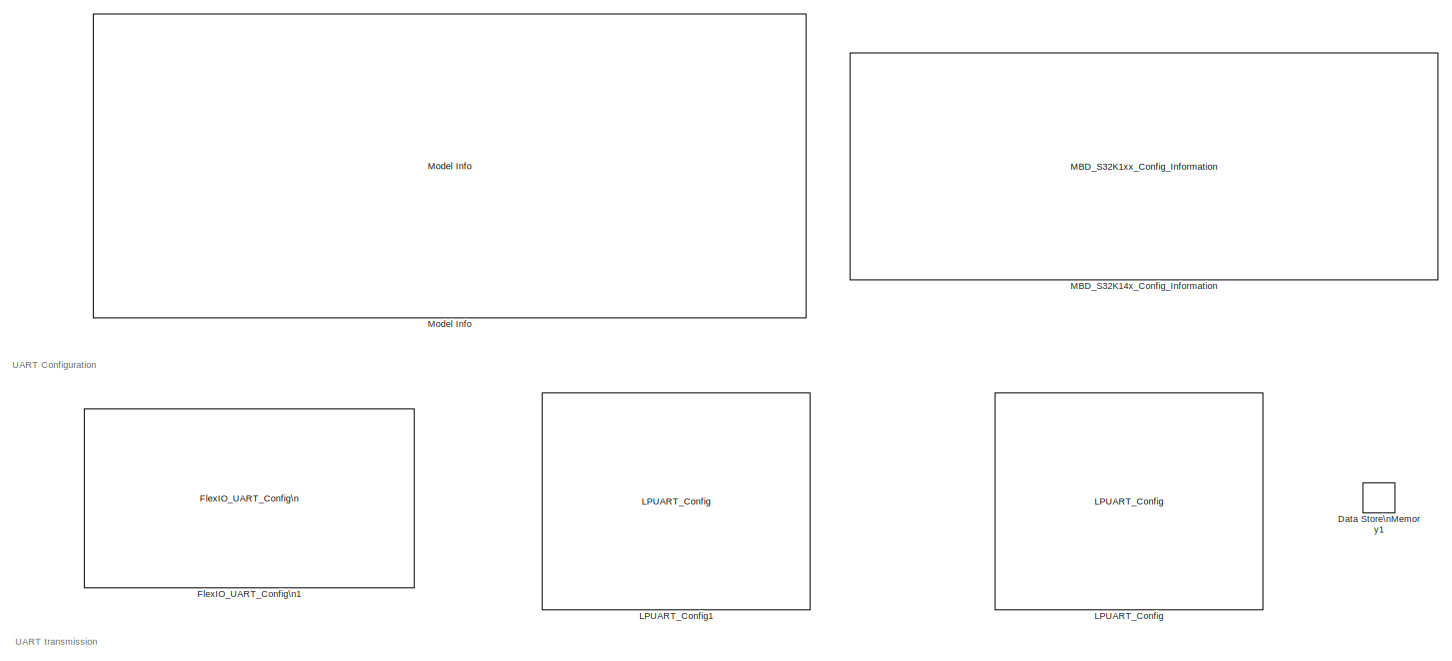
[diagram: root canvas - part 1/2, full width, top band]
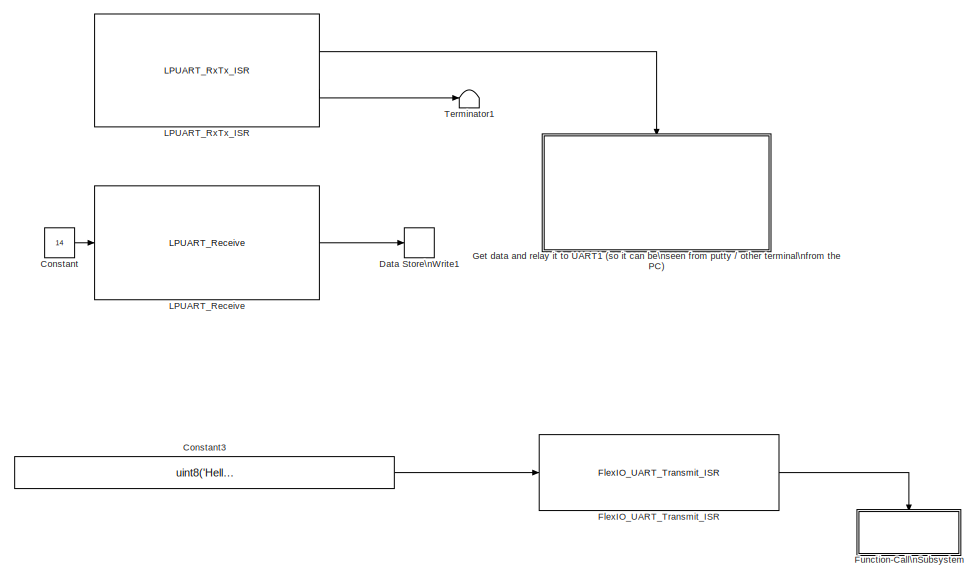
[diagram: root canvas - part 2/2, bottom center region]
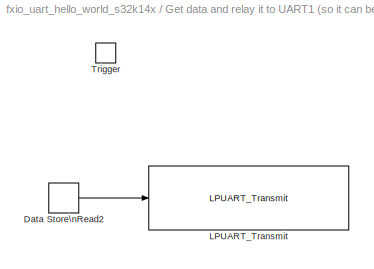
MODEL fxio_uart_hello_world_s32k14x
KIND model
CONFIG InitFcn = mbd_s32k_consistency_checks(bdroot(gcs));
BLOCK [Constant] Constant
  OutDataTypeStr = uint32
  SID = 195
  Value = 14
BLOCK [Constant] Constant3
  OutDataTypeStr = uint8
  SID = 201
  SampleTime = -1
  Value = uint8('Hello World!!!')
BLOCK [DataStoreMemory] Data Store\nMemory1
  DataStoreName = data
  Dimensions = 14
  ReadBeforeWriteMsg = warning
  SID = 202
  ShowAdditionalParam = off
  WriteAfterReadMsg = warning
  WriteAfterWriteMsg = warning
BLOCK [DataStoreWrite] Data Store\nWrite1
  DataStoreName = data
  Ports = [1]
  SID = 203
BLOCK [Reference] FlexIO_UART_Config\n1  REF=mbd_s32k1xx_ec_toolbox/Communication Blocks/FlexIO Blocks\n/FlexIO UART Blocks/FlexIO_UART_Config\n
  BaudRate = 115200
  BitCount = 8
  DriverType = Interrupts
  InstanceNumber = 0
  Ports = []
  Priority = 3
  RxPin = PTD1: [FXIO_D1 | FlexIO Bi-directional Shift/timer I/O]
  SID = 105
  SourceBlock = mbd_s32k1xx_ec_toolbox/Communication Blocks/FlexIO Blocks\n/FlexIO UART Blocks/FlexIO_UART_Config\n
  SourceType = flexio_uart_s32k_config
  TxPin = PTD0: [FXIO_D0 | FlexIO Bi-directional Shift/timer I/O]
BLOCK [Reference] FlexIO_UART_Transmit_ISR  REF=mbd_s32k1xx_ec_toolbox/Communication Blocks/FlexIO Blocks\n/FlexIO UART Blocks/FlexIO_UART_Transmit_ISR
  InstanceNumber = 0
  Ports = [1, 1]
  SID = 196
  SourceBlock = mbd_s32k1xx_ec_toolbox/Communication Blocks/FlexIO Blocks\n/FlexIO UART Blocks/FlexIO_UART_Transmit_ISR
  SourceType = flexio_uart_s32k_transmit_isr
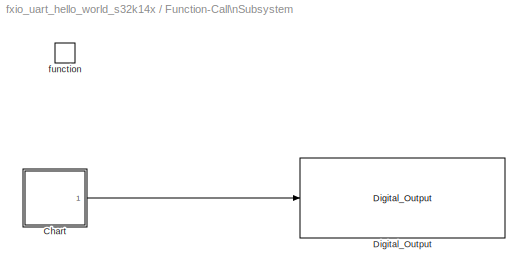
BLOCK [SubSystem] Function-Call\nSubsystem
  Ports = [0, 0, 0, 1]
  RequestExecContextInheritance = off
  SID = 197
  TreatAsAtomicUnit = on
  Variant = off
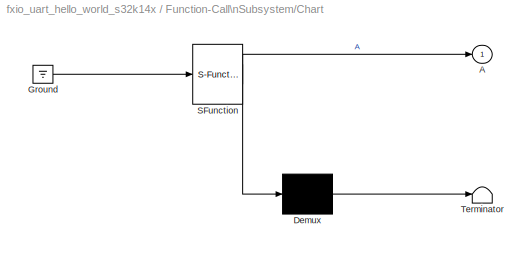
BLOCK [SubSystem] Function-Call\nSubsystem/Chart
  ErrorFcn = Stateflow.Translate.translate
  PermitHierarchicalResolution = ExplicitOnly
  Ports = [0, 1]
  RequestExecContextInheritance = off
  SFBlockType = Chart
  SID = 199
  TreatAsAtomicUnit = on
  Variant = off
BLOCK [Outport] Function-Call\nSubsystem/Chart/ A
  IconDisplay = Port number
  SID = 199::6
BLOCK [Demux] Function-Call\nSubsystem/Chart/ Demux 
  Outputs = 1
  Ports = [1, 1]
  SID = 199::36
BLOCK [Ground] Function-Call\nSubsystem/Chart/ Ground 
  SID = 199::38
BLOCK [S-Function] Function-Call\nSubsystem/Chart/ SFunction 
  EnableBusSupport = off
  FunctionName = sf_sfun
  PortCounts = [1 2]
  Ports = [1, 2]
  SFcnIsStateOwnerBlock = off
  SFunctionDeploymentMode = off
  SID = 199::35
  Tag = Stateflow S-Function fxio_uart_hello_world_s32k14x 2
BLOCK [Terminator] Function-Call\nSubsystem/Chart/ Terminator 
  SID = 199::37
BLOCK [Reference] Function-Call\nSubsystem/Digital_Output  REF=mbd_s32k1xx_ec_toolbox/GPIO Blocks/Digital_Output
  Ports = [1]
  SID = 200
  SourceBlock = mbd_s32k1xx_ec_toolbox/GPIO Blocks/Digital_Output
  SourceType = gpio_s32k_output
  drive_strength = Low
  gpio_pin = PTD16: [PTD16 | Port D I/O]
  init_val = Low
BLOCK [TriggerPort] Function-Call\nSubsystem/function
  Ports = []
  SID = 198
  StatesWhenEnabling = held
  TriggerType = function-call
  VariantControl = Variant
BLOCK [SubSystem] Get data and relay it to UART1 (so it can be\nseen from putty // other terminal\nfrom the PC)
  Ports = [0, 0, 0, 1]
  RequestExecContextInheritance = off
  SID = 122
  Variant = off
BLOCK [DataStoreRead] Get data and relay it to UART1 (so it can be\nseen from putty // other terminal\nfrom the PC)/Data Store\nRead2
  DataStoreName = data
  Ports = [0, 1]
  SID = 204
BLOCK [Reference] Get data and relay it to UART1 (so it can be\nseen from putty // other terminal\nfrom the PC)/LPUART_Transmit  REF=mbd_s32k1xx_ec_toolbox/Communication Blocks/UART Blocks/LPUART_Transmit
  Ports = [1]
  Priority = 2
  SID = 125
  SourceBlock = mbd_s32k1xx_ec_toolbox/Communication Blocks/UART Blocks/LPUART_Transmit
  SourceType = lpuart_s32k_transmit
  instance = 1
BLOCK [TriggerPort] Get data and relay it to UART1 (so it can be\nseen from putty // other terminal\nfrom the PC)/Trigger
  PortDimensions = 1
  Ports = []
  SID = 124
  StatesWhenEnabling = held
  TriggerType = function-call
  VariantControl = Variant
BLOCK [Reference] LPUART_Config  REF=mbd_s32k1xx_ec_toolbox/Communication Blocks/UART Blocks/LPUART_Config
  Ports = []
  Priority = 2
  SID = 126
  SourceBlock = mbd_s32k1xx_ec_toolbox/Communication Blocks/UART Blocks/LPUART_Config
  SourceType = lpuart_s32k_config
  baudrate = 115200
  bothedge = rising edge
  brk13 = 10 - 13 bit times
  cts = PTC12: [LPUART2_CTS | Clear To Send (bar)]
  databits = 8
  instance = 2
  lbkde = 10 - 13 bit times
  parity = None
  rts = PTC13: [LPUART2_RTS | Request To Send]
  rx = PTD6: [LPUART2_RX | Receive]
  rxinv = off
  sbns = 1
  show_adv_opts = on
  tx = PTD7: [LPUART2_TX | Transmit]
  txinv = off
BLOCK [Reference] LPUART_Config1  REF=mbd_s32k1xx_ec_toolbox/Communication Blocks/UART Blocks/LPUART_Config
  Ports = []
  Priority = 2
  SID = 127
  SourceBlock = mbd_s32k1xx_ec_toolbox/Communication Blocks/UART Blocks/LPUART_Config
  SourceType = lpuart_s32k_config
  baudrate = 115200
  bothedge = rising edge
  brk13 = 10 - 13 bit times
  cts = PTA6: [LPUART1_CTS | Clear To Send (bar)]
  databits = 8
  instance = 1
  lbkde = 10 - 13 bit times
  parity = None
  rts = PTA7: [LPUART1_RTS | Request To Send]
  rx = PTC6: [LPUART1_RX | Receive]
  rxinv = off
  sbns = 1
  show_adv_opts = off
  tx = PTC7: [LPUART1_TX | Transmit]
  txinv = off
BLOCK [Reference] LPUART_Receive  REF=mbd_s32k1xx_ec_toolbox/Communication Blocks/UART Blocks/LPUART_Receive
  Ports = [1, 1]
  SID = 128
  SourceBlock = mbd_s32k1xx_ec_toolbox/Communication Blocks/UART Blocks/LPUART_Receive
  SourceType = lpuart_s32k_receive
  instance = 2
BLOCK [Reference] LPUART_RxTx_ISR  REF=mbd_s32k1xx_ec_toolbox/Communication Blocks/UART Blocks/LPUART_RxTx_ISR
  Ports = [0, 2]
  Priority = 4
  SID = 129
  SourceBlock = mbd_s32k1xx_ec_toolbox/Communication Blocks/UART Blocks/LPUART_RxTx_ISR
  SourceType = lpuart_s32k_rxtx_isr
  ilie = off
  instance = 2
  prio = 14
  rie = on
  tcie = off
  tie = off
BLOCK [Reference] MBD_S32K14x_Config_Information  REF=mbd_s32k1xx_ec_toolbox/MBD_S32K1xx_Config_Information
  ADC_PcrCheckEnDis = on
  AMMCLIB_PcrCheckEnDis = on
  CMP_PcrCheckEnDis = on
  CSEc_PcrCheckEnDis = on
  ConfigParams_PcrCheckEnDis = on
  FM_PcrCheckEnDis = on
  FTM_Dual_Edge_Inputs_PcrCheckEnDis = on
  FTM_Hall_Sensor_Inputs_PcrCheckEnDis = on
  FTM_Input_Edge_Inputs_PcrCheckEnDis = on
  FTM_PWM_PcrCheckEnDis = on
  FTM_Quadrature_Inputs_PcrCheckEnDis = on
  FlexCAN_PcrCheckEnDis = on
  FlexIO_PcrCheckEnDis = on
  GPIO_InputPcrCheckEnDis = on
  GPIO_OutputPcrCheckEnDis = on
  LIN_PcrCheckEnDis = on
  LPI2C_PcrCheckEnDis = on
  LPSPI_PcrCheckEnDis = on
  LPTMR_PcrCheckEnDis = on
  LPUART_PcrCheckEnDis = on
  ModelRef_PcrCheckEnDis = on
  PDB0_PcrCheckEnDis = on
  PIT_PcrCheckEnDis = on
  Ports = []
  Profile_PcrCheckEnDis = on
  RTC_PcrCheckEnDis = on
  SBC_PcrCheckEnDis = on
  SID = 2
  SourceBlock = mbd_s32k1xx_ec_toolbox/MBD_S32K1xx_Config_Information
  SourceType = MBDTBX_EC_S32K
  WDOG_PcrCheckEnDis = on
  config_params = []
  disp_str = Target : S32K144-64KB_SRAM\nPackage : 100-pin\nSystem clock : 80 MHz\nXTAL clock : External 8 MHz\nCompiler : IAR\nTarget Type : FLASH\nDownload Code after build : off\nStep Tick Interrupt Priority : 15
  ds_import_enable = on
  eDMA_PcrCheckEnDis = on
  gcc_target_assemble_opts = -mcpu=cortex-m4 -mthumb -mfloat-abi=hard -mfpu=fpv4-sp-d16 -g
  gcc_target_compile_opts = -mcpu=cortex-m4 -mthumb -mfloat-abi=hard -mfpu=fpv4-sp-d16 -O1 -g -gstrict-dwarf
  gcc_target_default_lcf = on
  gcc_target_link_opts = -mcpu=cortex-m4 -mthumb -mfloat-abi=hard -mfpu=fpv4-sp-d16
  gcc_target_user_lcf = S32K144_48_flash.ld
  ghs_target_assemble_opts = -cpu=cortexm4f -fpu=vfpv4_d16
  ghs_target_compile_opts = -cpu=cortexm4f -thumb -DARM_MATH_CM4 -fpu=vfpv4_d16 -fsingle -Ogeneral -Wundef -Wimplicit-int -Wshadow -Wtrigraphs --no_commons --gnu_asm -gnu99 -gdwarf-2 -G
  ghs_target_default_lcf = off
  ghs_target_link_opts = -cpu=cortexm4f -thumb -fpu=vfpv4_d16
  ghs_target_user_lcf = S32K144_48_flash.ld
  iar_target_assemble_opts = --cpu Cortex-M4F --thumb --fpu VFPv4_sp
  iar_target_compile_opts = --cpu=Cortex-M4F --thumb --fpu=VFPv4_sp -Ol -e --debug --dlib_config normal
  iar_target_default_lcf = off
  iar_target_link_opts = --no_exceptions --vfe --inline
  iar_target_user_lcf = S32K144_48_flash.icf
  mbdt_ver = 0
  mcu_steptick_prio = 15
  mcu_steptick_timer = LPIT Channel 0
  mcu_system_clock_freq = 80
  mcu_target_name = S32K144
  mcu_target_package = 100-LQFP
  mcu_target_sram_size = 48KB
  mcu_xtal_freq = External 8
  pil_download_enable = off
  pil_download_rate = 57600
  pil_opensda_drive = Custom
  pil_opensda_drive_custom = D
  pil_uart_instance = 0
  pil_uart_rx = PTA2: [LPUART0_RX | Receive]
  pil_uart_tx = PTA3: [LPUART0_TX | Transmit]
  rbl_com_port = Custom
  rbl_com_port_custom = COM1
  rbl_download_enable = on
  rbl_download_interface = OpenSDA
  rbl_restart_request = off
  rbl_start_delay = 5000000
  target_compiler = GCC
  target_memory = FLASH
BLOCK [Reference] Model Info  REF=simulink/Model-Wide\nUtilities/Model Info
  DisplayStringWithTags = Model Name: %<ModelName>\n\nDescription: %<Description>
  Frame = off
  HorizontalTextAlignment = Left
  LeftAlignmentValue = 0.02
  MaskDisplayString = Model Name: fxio_uart_hello_world_s32k14x\\n\\nDescription: In this example you send the data to UART2 instance from the FlexIO module and then the message is relayed to UART1 so you can visualize\\nit via a serial terminal (eg. Putty).\\n\\nHW prerequisite:\\n- S32K144 EVB\\n- Connect:\\n    PTD0 (FXIO_UART_Tx from the board) - PTD6 (Rx UART2 from the board)\\n\\nVerification:\\n\\nOpen a termina...<+498ch>
  Ports = []
  SID = 194
  SourceBlock = simulink/Model-Wide\nUtilities/Model Info
  SourceProductBaseCode = SL
  SourceProductName = Simulink
  SourceType = CMBlock
BLOCK [Terminator] Terminator1
  SID = 130
ANNOTATION (root): UART Configuration
ANNOTATION (root): UART transmission
LINE Constant3:1 -> FlexIO_UART_Transmit_ISR:1
LINE Constant:1 -> LPUART_Receive:1
LINE FlexIO_UART_Transmit_ISR:1 -> Function-Call\nSubsystem:trigger
LINE Function-Call\nSubsystem/Chart/ Demux :1 -> Function-Call\nSubsystem/Chart/ Terminator :1
LINE Function-Call\nSubsystem/Chart/ Ground :1 -> Function-Call\nSubsystem/Chart/ SFunction :1
LINE Function-Call\nSubsystem/Chart/ SFunction :1 -> Function-Call\nSubsystem/Chart/ Demux :1
LINE Function-Call\nSubsystem/Chart/ SFunction :2 -> Function-Call\nSubsystem/Chart/ A:1
LINE Function-Call\nSubsystem/Chart:1 -> Function-Call\nSubsystem/Digital_Output:1
LINE Get data and relay it to UART1 (so it can be\nseen from putty // other terminal\nfrom the PC)/Data Store\nRead2:1 -> Get data and relay it to UART1 (so it can be\nseen from putty // other terminal\nfrom the PC)/LPUART_Transmit:1
LINE LPUART_Receive:1 -> Data Store\nWrite1:1
LINE LPUART_RxTx_ISR:1 -> Get data and relay it to UART1 (so it can be\nseen from putty // other terminal\nfrom the PC):trigger
LINE LPUART_RxTx_ISR:2 -> Terminator1:1
CHART Function-Call\nSubsystem/Chart states=2 transitions=3
  STATE_LABEL 'A'
  STATE_LABEL 'A1'
